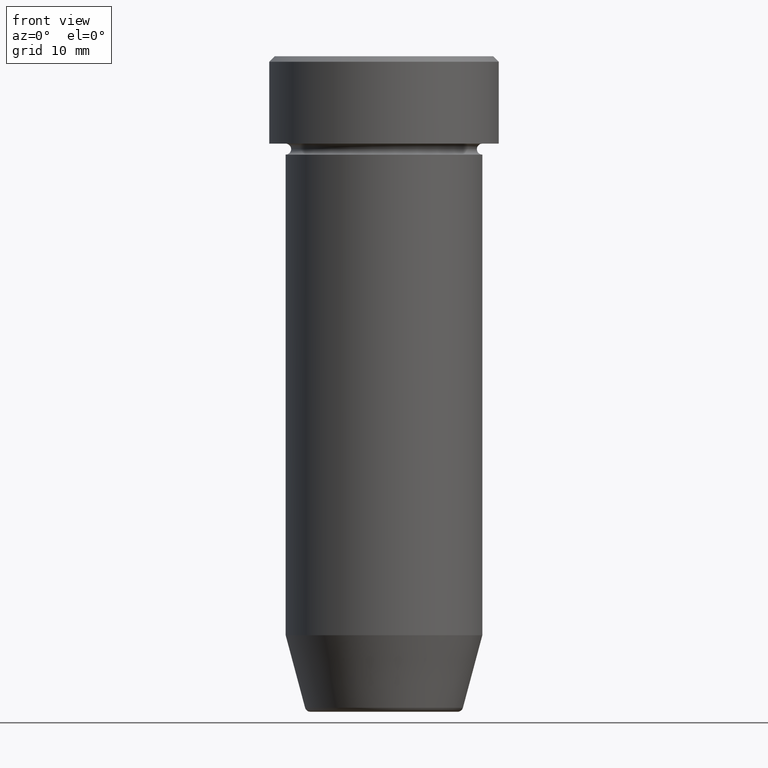
[diagram: clean part render]
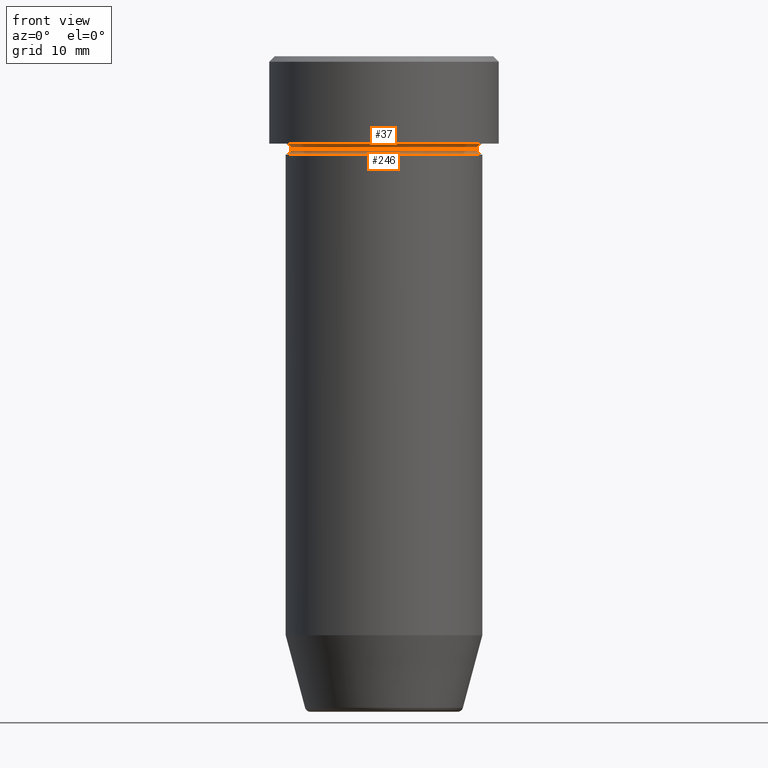
[diagram: same view with one multi-face feature highlighted, each face labeled with its STEP entity id]
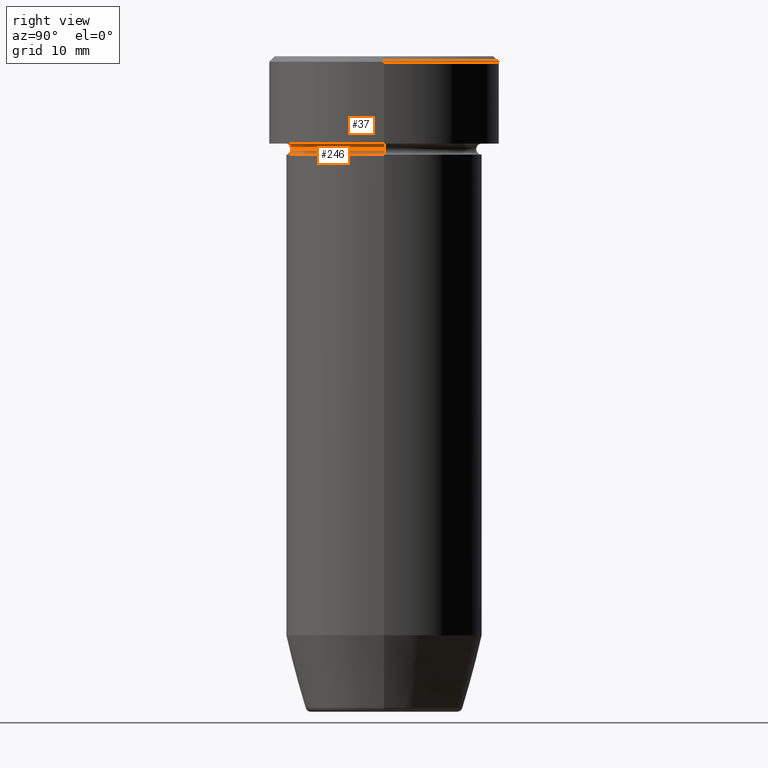
[diagram: same view with one multi-face feature highlighted, each face labeled with its STEP entity id]
A machine part, front view. The highlighted faces form ONE feature: a constant-radius fillet chain: 2 tangent blend faces with common blend radius 0.5 mm. The faces share edges in the B-rep.
A second angle (right view) of the same feature is appended — it is thin or edge-on in the first view.
Their STEP definitions:
[1] entity #37 (Torus):
#3 = DIRECTION ( 'NONE',  ( 0.000000000000000000, 0.000000000000000000, -1.000000000000000000 ) ) ;
#5 = DIRECTION ( 'NONE',  ( -0.000000000000000000, -0.000000000000000000, 1.000000000000000000 ) ) ;
#37 = ADVANCED_FACE ( 'NONE', ( #259 ), #353, .F. ) ;
#56 = AXIS2_PLACEMENT_3D ( 'NONE', #489, #449, #350 ) ;
#85 = EDGE_CURVE ( 'NONE', #474, #336, #137, .T. ) ;
#104 = ORIENTED_EDGE ( 'NONE', *, *, #402, .T. ) ;
#137 = CIRCLE ( 'NONE', #161, 9.000000000000000000 ) ;
#151 = VERTEX_POINT ( 'NONE', #274 ) ;
#161 = AXIS2_PLACEMENT_3D ( 'NONE', #253, #537, #434 ) ;
#164 = EDGE_CURVE ( 'NONE', #151, #474, #414, .T. ) ;
#191 = DIRECTION ( 'NONE',  ( 1.000000000000000000, 0.000000000000000000, 0.000000000000000000 ) ) ;
#194 = CARTESIAN_POINT ( 'NONE',  ( 8.499999999999998224, 0.000000000000000000, -8.500000000000000000 ) ) ;
#253 = CARTESIAN_POINT ( 'NONE',  ( 0.000000000000000000, 0.000000000000000000, -8.000000000000000000 ) ) ;
#259 = FACE_OUTER_BOUND ( 'NONE', #335, .T. ) ;
#274 = CARTESIAN_POINT ( 'NONE',  ( -8.499999999999998224, 1.071565949253933927E-15, -8.500000000000000000 ) ) ;
#278 = CARTESIAN_POINT ( 'NONE',  ( -9.000000000000000000, 0.000000000000000000, -8.500000000000000000 ) ) ;
#289 = ORIENTED_EDGE ( 'NONE', *, *, #85, .F. ) ;
#335 = EDGE_LOOP ( 'NONE', ( #411, #104, #289, #589 ) ) ;
#336 = VERTEX_POINT ( 'NONE', #347 ) ;
#347 = CARTESIAN_POINT ( 'NONE',  ( 9.000000000000000000, 1.102182119232617714E-15, -8.000000000000000000 ) ) ;
#350 = DIRECTION ( 'NONE',  ( -1.000000000000000000, 0.000000000000000000, 0.000000000000000000 ) ) ;
#353 = TOROIDAL_SURFACE ( 'NONE', #56, 9.000000000000000000, 0.5000000000000000000 ) ;
#355 = AXIS2_PLACEMENT_3D ( 'NONE', #362, #376, #403 ) ;
#362 = CARTESIAN_POINT ( 'NONE',  ( 9.000000000000000000, 1.102182119232617714E-15, -8.500000000000000000 ) ) ;
#370 = AXIS2_PLACEMENT_3D ( 'NONE', #278, #401, #3 ) ;
#376 = DIRECTION ( 'NONE',  ( -1.224646799147353207E-16, 1.000000000000000000, 0.000000000000000000 ) ) ;
#390 = VERTEX_POINT ( 'NONE', #194 ) ;
#398 = AXIS2_PLACEMENT_3D ( 'NONE', #566, #5, #191 ) ;
#401 = DIRECTION ( 'NONE',  ( -0.000000000000000000, -1.000000000000000000, -0.000000000000000000 ) ) ;
#402 = EDGE_CURVE ( 'NONE', #390, #336, #480, .T. ) ;
#403 = DIRECTION ( 'NONE',  ( -1.000000000000000000, -1.224646799147353454E-16, 0.000000000000000000 ) ) ;
#411 = ORIENTED_EDGE ( 'NONE', *, *, #419, .T. ) ;
#414 = CIRCLE ( 'NONE', #370, 0.5000000000000004441 ) ;
#419 = EDGE_CURVE ( 'NONE', #151, #390, #491, .T. ) ;
#434 = DIRECTION ( 'NONE',  ( -1.000000000000000000, 0.000000000000000000, 0.000000000000000000 ) ) ;
#449 = DIRECTION ( 'NONE',  ( 0.000000000000000000, 0.000000000000000000, -1.000000000000000000 ) ) ;
#474 = VERTEX_POINT ( 'NONE', #595 ) ;
#480 = CIRCLE ( 'NONE', #355, 0.5000000000000004441 ) ;
#489 = CARTESIAN_POINT ( 'NONE',  ( 0.000000000000000000, 0.000000000000000000, -8.500000000000000000 ) ) ;
#491 = CIRCLE ( 'NONE', #398, 8.499999999999998224 ) ;
#537 = DIRECTION ( 'NONE',  ( -0.000000000000000000, -0.000000000000000000, 1.000000000000000000 ) ) ;
#566 = CARTESIAN_POINT ( 'NONE',  ( 0.000000000000000000, 0.000000000000000000, -8.500000000000000000 ) ) ;
#589 = ORIENTED_EDGE ( 'NONE', *, *, #164, .F. ) ;
#595 = CARTESIAN_POINT ( 'NONE',  ( -9.000000000000000000, 0.000000000000000000, -8.000000000000000000 ) ) ;
[2] entity #246 (Torus):
#5 = DIRECTION ( 'NONE',  ( -0.000000000000000000, -0.000000000000000000, 1.000000000000000000 ) ) ;
#9 = DIRECTION ( 'NONE',  ( 1.000000000000000000, 0.000000000000000000, 0.000000000000000000 ) ) ;
#16 = VERTEX_POINT ( 'NONE', #124 ) ;
#22 = EDGE_CURVE ( 'NONE', #390, #506, #323, .T. ) ;
#28 = CARTESIAN_POINT ( 'NONE',  ( 9.000000000000000000, 0.000000000000000000, -8.500000000000000000 ) ) ;
#48 = EDGE_LOOP ( 'NONE', ( #311, #203, #193, #74 ) ) ;
#49 = EDGE_CURVE ( 'NONE', #16, #506, #66, .T. ) ;
#66 = CIRCLE ( 'NONE', #202, 9.000000000000000000 ) ;
#74 = ORIENTED_EDGE ( 'NONE', *, *, #22, .F. ) ;
#112 = DIRECTION ( 'NONE',  ( -0.000000000000000000, -0.000000000000000000, 1.000000000000000000 ) ) ;
#118 = AXIS2_PLACEMENT_3D ( 'NONE', #597, #128, #456 ) ;
#124 = CARTESIAN_POINT ( 'NONE',  ( -9.000000000000000000, 1.102182119232617714E-15, -9.000000000000001776 ) ) ;
#128 = DIRECTION ( 'NONE',  ( 1.224646799147353207E-16, 1.000000000000000000, 0.000000000000000000 ) ) ;
#151 = VERTEX_POINT ( 'NONE', #274 ) ;
#191 = DIRECTION ( 'NONE',  ( 1.000000000000000000, 0.000000000000000000, 0.000000000000000000 ) ) ;
#193 = ORIENTED_EDGE ( 'NONE', *, *, #49, .T. ) ;
#194 = CARTESIAN_POINT ( 'NONE',  ( 8.499999999999998224, 0.000000000000000000, -8.500000000000000000 ) ) ;
#202 = AXIS2_PLACEMENT_3D ( 'NONE', #576, #112, #303 ) ;
#203 = ORIENTED_EDGE ( 'NONE', *, *, #209, .T. ) ;
#209 = EDGE_CURVE ( 'NONE', #151, #16, #354, .T. ) ;
#246 = ADVANCED_FACE ( 'NONE', ( #503 ), #458, .F. ) ;
#274 = CARTESIAN_POINT ( 'NONE',  ( -8.499999999999998224, 1.071565949253933927E-15, -8.500000000000000000 ) ) ;
#286 = AXIS2_PLACEMENT_3D ( 'NONE', #520, #372, #9 ) ;
#303 = DIRECTION ( 'NONE',  ( 1.000000000000000000, 0.000000000000000000, 0.000000000000000000 ) ) ;
#311 = ORIENTED_EDGE ( 'NONE', *, *, #419, .F. ) ;
#323 = CIRCLE ( 'NONE', #529, 0.5000000000000004441 ) ;
#354 = CIRCLE ( 'NONE', #118, 0.5000000000000004441 ) ;
#358 = CARTESIAN_POINT ( 'NONE',  ( 9.000000000000000000, 0.000000000000000000, -9.000000000000001776 ) ) ;
#372 = DIRECTION ( 'NONE',  ( -0.000000000000000000, -0.000000000000000000, 1.000000000000000000 ) ) ;
#390 = VERTEX_POINT ( 'NONE', #194 ) ;
#398 = AXIS2_PLACEMENT_3D ( 'NONE', #566, #5, #191 ) ;
#419 = EDGE_CURVE ( 'NONE', #151, #390, #491, .T. ) ;
#456 = DIRECTION ( 'NONE',  ( -1.000000000000000000, 1.224646799147353454E-16, 0.000000000000000000 ) ) ;
#458 = TOROIDAL_SURFACE ( 'NONE', #286, 9.000000000000000000, 0.5000000000000000000 ) ;
#491 = CIRCLE ( 'NONE', #398, 8.499999999999998224 ) ;
#503 = FACE_OUTER_BOUND ( 'NONE', #48, .T. ) ;
#506 = VERTEX_POINT ( 'NONE', #358 ) ;
#520 = CARTESIAN_POINT ( 'NONE',  ( 0.000000000000000000, 0.000000000000000000, -8.500000000000000000 ) ) ;
#529 = AXIS2_PLACEMENT_3D ( 'NONE', #28, #592, #545 ) ;
#545 = DIRECTION ( 'NONE',  ( 0.000000000000000000, 0.000000000000000000, -1.000000000000000000 ) ) ;
#566 = CARTESIAN_POINT ( 'NONE',  ( 0.000000000000000000, 0.000000000000000000, -8.500000000000000000 ) ) ;
#576 = CARTESIAN_POINT ( 'NONE',  ( 0.000000000000000000, 0.000000000000000000, -9.000000000000001776 ) ) ;
#592 = DIRECTION ( 'NONE',  ( 0.000000000000000000, -1.000000000000000000, 0.000000000000000000 ) ) ;
#597 = CARTESIAN_POINT ( 'NONE',  ( -9.000000000000000000, 1.102182119232617714E-15, -8.500000000000000000 ) ) ;